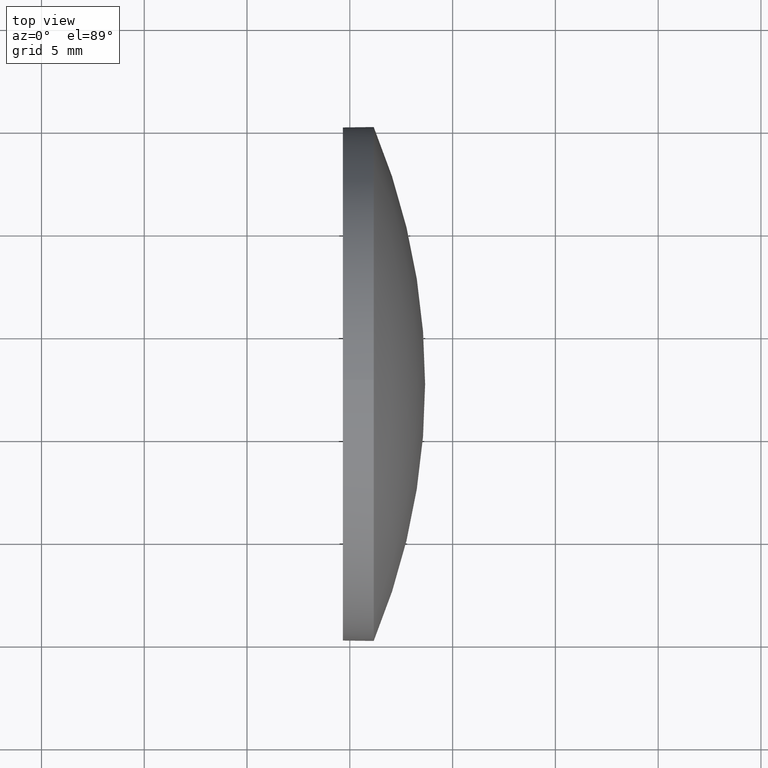
[diagram: clean part render]
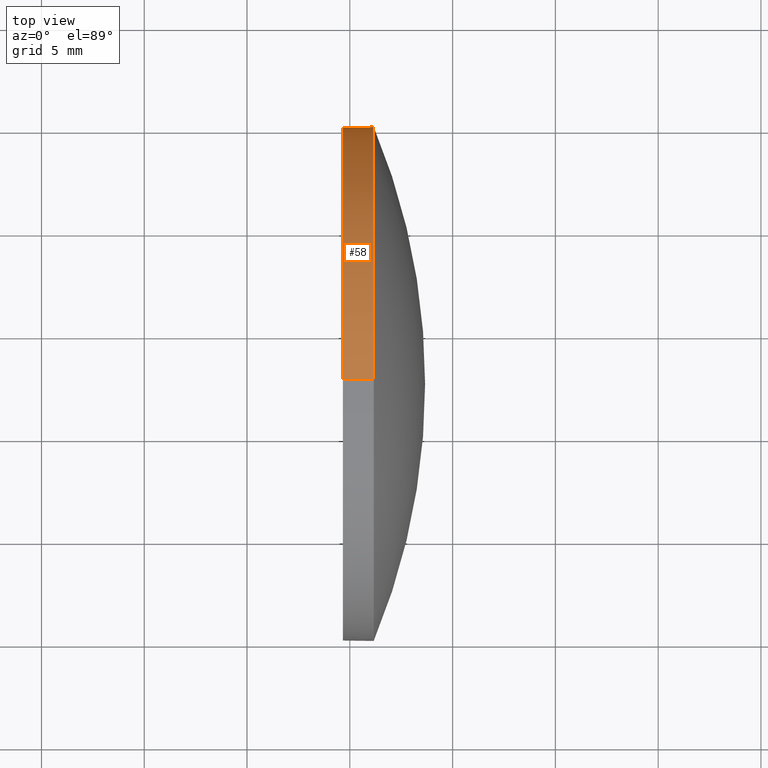
[diagram: same view with one face highlighted and labeled with its STEP entity id]
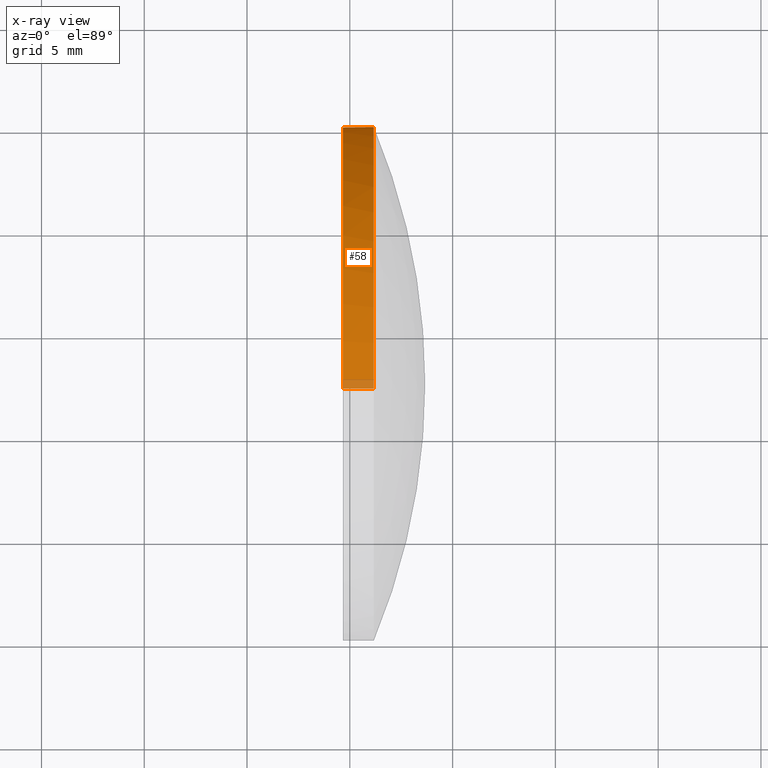
[diagram: x-ray of the same camera — body ghosted, the highlighted face saturated]
A machine part, top view. The second image highlights one B-rep face of the part: STEP entity #58.
The next image is the same camera in x-ray: the body ghosted, the highlighted face saturated — about 3% of this face is hidden behind the body in this view.
In plain terms, the highlighted cylindrical surface (partial cylindrical patch) has radius 12.5 mm, axis along (-1, -0, -0).
Its self-contained STEP definition (entity closure, byte-faithful):
#4 = VECTOR ( 'NONE', #179, 1000.000000000000000 ) ;
#6 = AXIS2_PLACEMENT_3D ( 'NONE', #137, #65, #86 ) ;
#7 = CARTESIAN_POINT ( 'NONE',  ( 549.6628150025262600, 7.574565257038786500, -12.50000000000000000 ) ) ;
#9 = CYLINDRICAL_SURFACE ( 'NONE', #6, 12.50000000000000000 ) ;
#12 = EDGE_CURVE ( 'NONE', #176, #143, #101, .T. ) ;
#14 = ORIENTED_EDGE ( 'NONE', *, *, #12, .T. ) ;
#15 = VERTEX_POINT ( 'NONE', #133 ) ;
#17 = ORIENTED_EDGE ( 'NONE', *, *, #178, .F. ) ;
#20 = DIRECTION ( 'NONE',  ( -1.000000000000000000, -0.0000000000000000000, -0.0000000000000000000 ) ) ;
#22 = CIRCLE ( 'NONE', #52, 12.50000000000000000 ) ;
#23 = CARTESIAN_POINT ( 'NONE',  ( 551.1628150025262600, 20.07456525703875600, 0.0000000000000000000 ) ) ;
#31 = EDGE_CURVE ( 'NONE', #120, #116, #90, .T. ) ;
#36 = CARTESIAN_POINT ( 'NONE',  ( 549.6628150025262600, 7.574565257038784700, 0.0000000000000000000 ) ) ;
#52 = AXIS2_PLACEMENT_3D ( 'NONE', #100, #159, #80 ) ;
#57 = VECTOR ( 'NONE', #157, 1000.000000000000000 ) ;
#58 = ADVANCED_FACE ( 'NONE', ( #81 ), #9, .T. ) ;
#61 = LINE ( 'NONE', #138, #4 ) ;
#65 = DIRECTION ( 'NONE',  ( -1.000000000000000000, -0.0000000000000000000, -0.0000000000000000000 ) ) ;
#71 = AXIS2_PLACEMENT_3D ( 'NONE', #181, #20, #161 ) ;
#72 = DIRECTION ( 'NONE',  ( -1.000000000000000000, -0.0000000000000000000, -0.0000000000000000000 ) ) ;
#77 = EDGE_CURVE ( 'NONE', #116, #176, #22, .T. ) ;
#80 = DIRECTION ( 'NONE',  ( 0.0000000000000000000, 0.0000000000000000000, 1.000000000000000000 ) ) ;
#81 = FACE_OUTER_BOUND ( 'NONE', #96, .T. ) ;
#86 = DIRECTION ( 'NONE',  ( 0.0000000000000000000, 0.0000000000000000000, 1.000000000000000000 ) ) ;
#89 = EDGE_CURVE ( 'NONE', #120, #15, #61, .T. ) ;
#90 = CIRCLE ( 'NONE', #71, 12.50000000000000000 ) ;
#91 = ORIENTED_EDGE ( 'NONE', *, *, #89, .F. ) ;
#93 = CARTESIAN_POINT ( 'NONE',  ( 547.6337074240892700, 7.574565257038786500, -12.50000000000000000 ) ) ;
#96 = EDGE_LOOP ( 'NONE', ( #111, #14, #17, #91, #129 ) ) ;
#100 = CARTESIAN_POINT ( 'NONE',  ( 551.1628150025262600, 7.574565257038784700, 0.0000000000000000000 ) ) ;
#101 = LINE ( 'NONE', #93, #57 ) ;
#111 = ORIENTED_EDGE ( 'NONE', *, *, #77, .T. ) ;
#116 = VERTEX_POINT ( 'NONE', #23 ) ;
#120 = VERTEX_POINT ( 'NONE', #123 ) ;
#123 = CARTESIAN_POINT ( 'NONE',  ( 551.1628150025262600, 7.574565257038784700, 12.50000000000000000 ) ) ;
#129 = ORIENTED_EDGE ( 'NONE', *, *, #31, .T. ) ;
#133 = CARTESIAN_POINT ( 'NONE',  ( 549.6628150025262600, 7.574565257038784700, 12.50000000000000000 ) ) ;
#137 = CARTESIAN_POINT ( 'NONE',  ( 547.6337074240892700, 7.574565257038784700, 0.0000000000000000000 ) ) ;
#138 = CARTESIAN_POINT ( 'NONE',  ( 547.6337074240892700, 7.574565257038784700, 12.50000000000000000 ) ) ;
#141 = DIRECTION ( 'NONE',  ( 0.0000000000000000000, 0.0000000000000000000, 1.000000000000000000 ) ) ;
#143 = VERTEX_POINT ( 'NONE', #7 ) ;
#148 = CARTESIAN_POINT ( 'NONE',  ( 551.1628150025262600, 7.574565257038786500, -12.50000000000000000 ) ) ;
#157 = DIRECTION ( 'NONE',  ( -1.000000000000000000, -0.0000000000000000000, -0.0000000000000000000 ) ) ;
#159 = DIRECTION ( 'NONE',  ( -1.000000000000000000, -0.0000000000000000000, -0.0000000000000000000 ) ) ;
#161 = DIRECTION ( 'NONE',  ( 0.0000000000000000000, 0.0000000000000000000, 1.000000000000000000 ) ) ;
#164 = AXIS2_PLACEMENT_3D ( 'NONE', #36, #72, #141 ) ;
#171 = CIRCLE ( 'NONE', #164, 12.50000000000000000 ) ;
#176 = VERTEX_POINT ( 'NONE', #148 ) ;
#178 = EDGE_CURVE ( 'NONE', #15, #143, #171, .T. ) ;
#179 = DIRECTION ( 'NONE',  ( -1.000000000000000000, -0.0000000000000000000, -0.0000000000000000000 ) ) ;
#181 = CARTESIAN_POINT ( 'NONE',  ( 551.1628150025262600, 7.574565257038784700, 0.0000000000000000000 ) ) ;